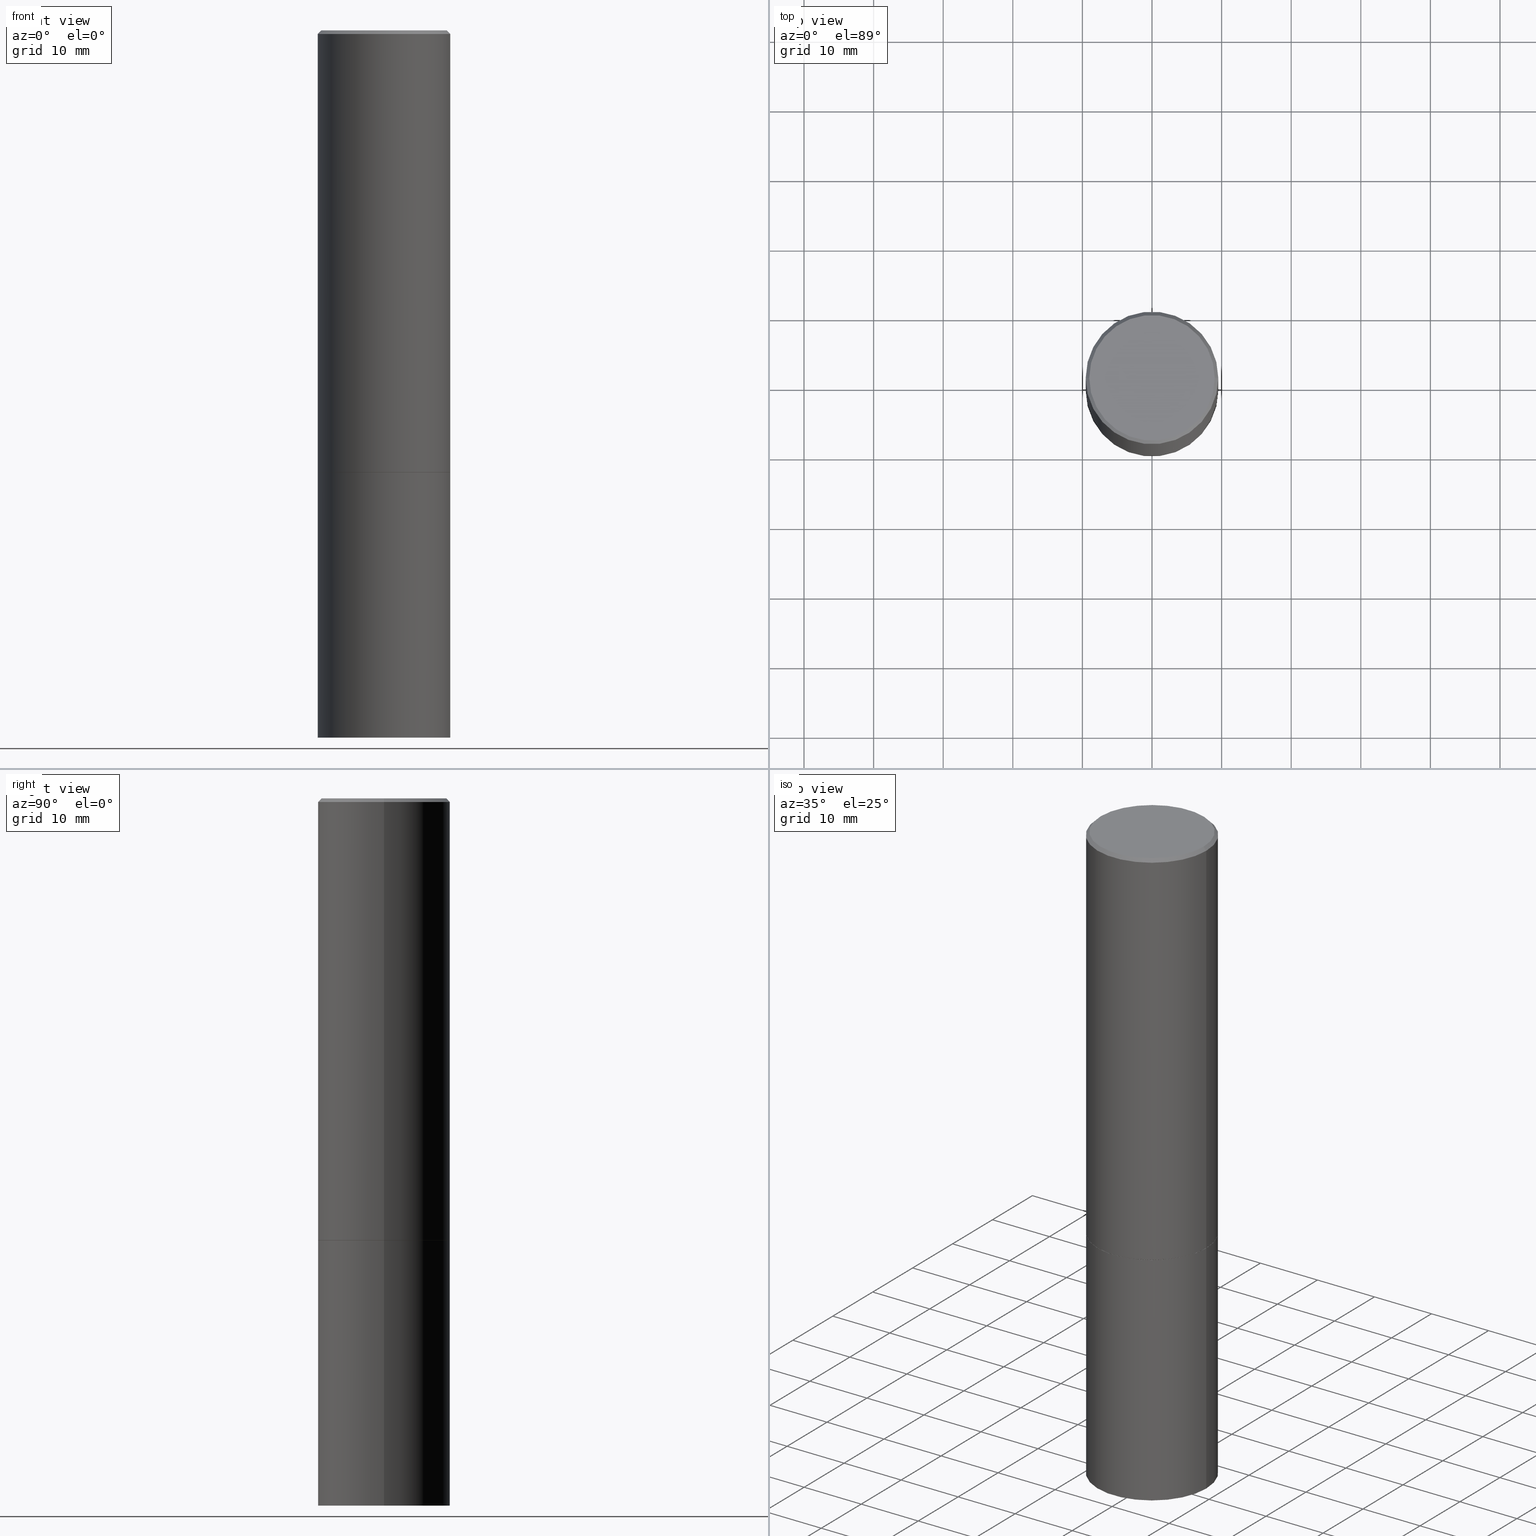
[diagram: canonical four-view strip — front | top / right | iso, engineering-drawing reading convention]
A machine part, canonical four-view strip (front | top / right | iso — engineering-drawing reading convention). The complete STEP part file that produces these views, byte-faithful:
ISO-10303-21;
HEADER;
FILE_DESCRIPTION (( 'STEP AP203' ),
    '1' );
FILE_NAME ('30182.STEP',
    '2023-03-21T20:25:00',
    ( '' ),
    ( '' ),
    'SwSTEP 2.0',
    'SolidWorks 2022',
    '' );
FILE_SCHEMA (( 'CONFIG_CONTROL_DESIGN' ));
ENDSEC;

DATA;
#1 = ORIENTED_EDGE ( 'NONE', *, *, #316, .T. ) ;
#2 = FACE_OUTER_BOUND ( 'NONE', #138, .T. ) ;
#3 = ORIENTED_EDGE ( 'NONE', *, *, #313, .T. ) ;
#4 = EDGE_CURVE ( 'NONE', #67, #338, #220, .T. ) ;
#5 = CC_DESIGN_DATE_AND_TIME_ASSIGNMENT ( #354, #20, ( #143 ) ) ;
#6 = EDGE_LOOP ( 'NONE', ( #136, #185, #334, #156 ) ) ;
#7 = DIRECTION ( 'NONE',  ( -2.445468806185136597E-29, 3.491481338843145583E-15, 1.000000000000000000 ) ) ;
#8 = ORIENTED_EDGE ( 'NONE', *, *, #97, .T. ) ;
#9 = LINE ( 'NONE', #318, #341 ) ;
#10 = AXIS2_PLACEMENT_3D ( 'NONE', #95, #215, #189 ) ;
#11 = LOCAL_TIME ( 16, 25, 0.000000000000000000, #266 ) ;
#12 = DIRECTION ( 'NONE',  ( -2.445468806185136597E-29, 3.491481338843145583E-15, 1.000000000000000000 ) ) ;
#13 = ORIENTED_EDGE ( 'NONE', *, *, #313, .F. ) ;
#14 = DATE_AND_TIME ( #351, #61 ) ;
#15 = DIRECTION ( 'NONE',  ( 1.000000000000000000, -6.982962677686265922E-15, 4.876176775795935793E-29 ) ) ;
#16 = CALENDAR_DATE ( 2023, 21, 3 ) ;
#17 = VECTOR ( 'NONE', #164, 39.37007874015748143 ) ;
#18 = CARTESIAN_POINT ( 'NONE',  ( 6.113672015462842613E-29, -8.728703347107864943E-15, -2.500000000000000000 ) ) ;
#19 = CC_DESIGN_PERSON_AND_ORGANIZATION_ASSIGNMENT ( #287, #144, ( #221 ) ) ;
#20 = DATE_TIME_ROLE ( 'creation_date' ) ;
#21 = DIRECTION ( 'NONE',  ( 1.000000000000000000, -6.982962677686268288E-15, 0.000000000000000000 ) ) ;
#22 = EDGE_CURVE ( 'NONE', #365, #192, #9, .T. ) ;
#23 = APPROVAL_DATE_TIME ( #323, #88 ) ;
#24 = CARTESIAN_POINT ( 'NONE',  ( -0.3750000000000001665, -1.134731435124022916E-14, -4.000000000000000000 ) ) ;
#25 = PERSON_AND_ORGANIZATION_ROLE ( 'creator' ) ;
#26 = DIRECTION ( 'NONE',  ( -2.445468806185136597E-29, 3.491481338843145583E-15, 1.000000000000000000 ) ) ;
#27 = AXIS2_PLACEMENT_3D ( 'NONE', #319, #100, #218 ) ;
#28 = AXIS2_PLACEMENT_3D ( 'NONE', #197, #26, #352 ) ;
#29 = DIRECTION ( 'NONE',  ( 0.7071067811868130271, -2.468850131085038979E-15, 0.7071067811862817853 ) ) ;
#30 = EDGE_CURVE ( 'NONE', #121, #365, #383, .T. ) ;
#31 = DIRECTION ( 'NONE',  ( -2.445468806185136597E-29, 3.491481338843145583E-15, 1.000000000000000000 ) ) ;
#32 = ORIENTED_EDGE ( 'NONE', *, *, #224, .T. ) ;
#33 = CC_DESIGN_PERSON_AND_ORGANIZATION_ASSIGNMENT ( #381, #297, ( #289 ) ) ;
#34 =( GEOMETRIC_REPRESENTATION_CONTEXT ( 3 ) GLOBAL_UNCERTAINTY_ASSIGNED_CONTEXT ( ( #202 ) ) GLOBAL_UNIT_ASSIGNED_CONTEXT ( ( #253, #102, #72 ) ) REPRESENTATION_CONTEXT ( 'NONE', 'WORKASPACE' ) );
#35 = PERSON ( 'UNSPECIFIED', 'UNSPECIFIED', 'UNSPECIFIED', ('UNSPECIFIED'), ('UNSPECIFIED'), ('UNSPECIFIED') ) ;
#36 = CONICAL_SURFACE ( 'NONE', #390, 0.3739999999999999991, 0.7853981633978239785 ) ;
#37 = VECTOR ( 'NONE', #377, 39.37007874015748143 ) ;
#38 = FACE_OUTER_BOUND ( 'NONE', #286, .T. ) ;
#39 = EDGE_LOOP ( 'NONE', ( #96, #32, #90, #240 ) ) ;
#40 = DIRECTION ( 'NONE',  ( 1.000000000000000000, -6.982962677686264344E-15, 0.000000000000000000 ) ) ;
#41 = ORIENTED_EDGE ( 'NONE', *, *, #186, .T. ) ;
#42 = CLOSED_SHELL ( 'NONE', ( #101, #244, #271, #78, #329, #159, #228, #173 ) ) ;
#43 = AXIS2_PLACEMENT_3D ( 'NONE', #108, #48, #56 ) ;
#44 = LINE ( 'NONE', #285, #17 ) ;
#45 = APPROVAL_ROLE ( '' ) ;
#46 = FACE_OUTER_BOUND ( 'NONE', #209, .T. ) ;
#47 = EDGE_CURVE ( 'NONE', #121, #120, #345, .T. ) ;
#48 = DIRECTION ( 'NONE',  ( 0.000000000000000000, 0.000000000000000000, 1.000000000000000000 ) ) ;
#49 = CARTESIAN_POINT ( 'NONE',  ( 2.478951750578621842E-15, 0.3549999999999996492, -1.237341619044265047E-15 ) ) ;
#50 = ORIENTED_EDGE ( 'NONE', *, *, #149, .F. ) ;
#51 = EDGE_CURVE ( 'NONE', #120, #192, #251, .T. ) ;
#52 = COORDINATED_UNIVERSAL_TIME_OFFSET ( 5, 0, .BEHIND. ) ;
#53 = AXIS2_PLACEMENT_3D ( 'NONE', #288, #7, #15 ) ;
#54 = CARTESIAN_POINT ( 'NONE',  ( -0.3750000000000000555, 2.664535259100376091E-15, -1.844600658845589598E-29 ) ) ;
#55 = VERTEX_POINT ( 'NONE', #70 ) ;
#56 = DIRECTION ( 'NONE',  ( 1.000000000000000000, 0.000000000000000000, 0.000000000000000000 ) ) ;
#57 = DIRECTION ( 'NONE',  ( 1.000000000000000000, -6.982962677686265922E-15, 4.876176775795935793E-29 ) ) ;
#58 = PERSON_AND_ORGANIZATION ( #35, #131 ) ;
#59 = DIRECTION ( 'NONE',  ( 1.000000000000000000, -6.982962677686265922E-15, 4.876176775795935793E-29 ) ) ;
#60 = DIRECTION ( 'NONE',  ( -2.445468806185136597E-29, 3.491481338843145583E-15, 1.000000000000000000 ) ) ;
#61 = LOCAL_TIME ( 16, 25, 0.000000000000000000, #166 ) ;
#62 = ORIENTED_EDGE ( 'NONE', *, *, #373, .T. ) ;
#63 = SECURITY_CLASSIFICATION ( '', '', #384 ) ;
#64 = ORIENTED_EDGE ( 'NONE', *, *, #373, .F. ) ;
#65 = EDGE_LOOP ( 'NONE', ( #135, #161 ) ) ;
#66 = DIRECTION ( 'NONE',  ( 0.9986295347545742773, -7.033825938271997912E-15, -0.05233595624293664594 ) ) ;
#67 = VERTEX_POINT ( 'NONE', #343 ) ;
#68 = CC_DESIGN_PERSON_AND_ORGANIZATION_ASSIGNMENT ( #168, #25, ( #143 ) ) ;
#69 = DIRECTION ( 'NONE',  ( -1.000000000000000000, 6.982962677686266711E-15, 0.000000000000000000 ) ) ;
#70 = CARTESIAN_POINT ( 'NONE',  ( 0.3750000000000001665, -1.653861210453690509E-14, -4.000000000000000000 ) ) ;
#71 = ADVANCED_FACE ( 'NONE', ( #38 ), #188, .F. ) ;
#72 =( NAMED_UNIT ( * ) SI_UNIT ( $, .STERADIAN. ) SOLID_ANGLE_UNIT ( ) );
#73 = AXIS2_PLACEMENT_3D ( 'NONE', #113, #178, #357 ) ;
#74 = CARTESIAN_POINT ( 'NONE',  ( 0.3749999999999998335, -2.618611004132348439E-15, 1.828566290923475082E-29 ) ) ;
#75 = CALENDAR_DATE ( 2023, 21, 3 ) ;
#76 = DIRECTION ( 'NONE',  ( -0.7071067811868130271, 7.493145998871311837E-15, 0.7071067811862817853 ) ) ;
#77 = CARTESIAN_POINT ( 'NONE',  ( 0.3739999999999999991, -1.134033138856252894E-14, -2.500000000000000000 ) ) ;
#78 = ADVANCED_FACE ( 'NONE', ( #217 ), #91, .T. ) ;
#79 = EDGE_LOOP ( 'NONE', ( #50, #62, #315 ) ) ;
#80 = COORDINATED_UNIVERSAL_TIME_OFFSET ( 5, 0, .BEHIND. ) ;
#81 = AXIS2_PLACEMENT_3D ( 'NONE', #94, #195, #98 ) ;
#82 = AXIS2_PLACEMENT_3D ( 'NONE', #151, #328, #115 ) ;
#83 = CARTESIAN_POINT ( 'NONE',  ( 0.3750000000000000555, -2.618611004132350016E-15, 1.828566290923476203E-29 ) ) ;
#84 = PLANE ( 'NONE',  #346 ) ;
#85 = CALENDAR_DATE ( 2023, 21, 3 ) ;
#86 = DIRECTION ( 'NONE',  ( 2.438088387897960049E-29, -3.491481338843145188E-15, -1.000000000000000000 ) ) ;
#87 = AXIS2_PLACEMENT_3D ( 'NONE', #298, #31, #89 ) ;
#88 = APPROVAL ( #105, 'UNSPECIFIED' ) ;
#89 = DIRECTION ( 'NONE',  ( 1.000000000000000000, -6.982962677686266711E-15, 0.000000000000000000 ) ) ;
#90 = ORIENTED_EDGE ( 'NONE', *, *, #211, .T. ) ;
#91 = CONICAL_SURFACE ( 'NONE', #303, 0.3749999999999996669, 0.7853981633974471688 ) ;
#92 = APPROVAL_PERSON_ORGANIZATION ( #226, #340, #45 ) ;
#93 = EDGE_CURVE ( 'NONE', #248, #192, #44, .T. ) ;
#94 = CARTESIAN_POINT ( 'NONE',  ( 1.060121140848089932E-27, -1.513572027916513369E-13, -43.35042582292633995 ) ) ;
#95 = CARTESIAN_POINT ( 'NONE',  ( 6.111226546656659252E-29, -8.725211865769023513E-15, -2.499000000000000998 ) ) ;
#96 = ORIENTED_EDGE ( 'NONE', *, *, #312, .F. ) ;
#97 = EDGE_CURVE ( 'NONE', #192, #120, #147, .T. ) ;
#98 = DIRECTION ( 'NONE',  ( -1.000000000000000000, 6.982962677686265922E-15, 0.000000000000000000 ) ) ;
#99 =( LENGTH_UNIT ( ) NAMED_UNIT ( * ) SI_UNIT ( $, .METRE. ) );
#100 = DIRECTION ( 'NONE',  ( -2.445468806185136597E-29, 3.491481338843145583E-15, 1.000000000000000000 ) ) ;
#101 = ADVANCED_FACE ( 'NONE', ( #46 ), #36, .T. ) ;
#102 =( NAMED_UNIT ( * ) PLANE_ANGLE_UNIT ( ) SI_UNIT ( $, .RADIAN. ) );
#103 = CARTESIAN_POINT ( 'NONE',  ( 6.113672015462842613E-29, -8.728703347107864943E-15, -2.500000000000000000 ) ) ;
#104 = CONICAL_SURFACE ( 'NONE', #158, 751.2258538476709191, 1.518436449235073926 ) ;
#105 = APPROVAL_STATUS ( 'not_yet_approved' ) ;
#106 = AXIS2_PLACEMENT_3D ( 'NONE', #306, #274, #270 ) ;
#107 = DIRECTION ( 'NONE',  ( -2.445468806185136877E-29, 3.491481338843145188E-15, 1.000000000000000000 ) ) ;
#108 = CARTESIAN_POINT ( 'NONE',  ( 0.000000000000000000, 0.000000000000000000, 0.000000000000000000 ) ) ;
#109 = CYLINDRICAL_SURFACE ( 'NONE', #82, 0.3749999999999998335 ) ;
#110 = DIRECTION ( 'NONE',  ( -1.000000000000000000, 6.982962677686265922E-15, 0.000000000000000000 ) ) ;
#111 = PERSON_AND_ORGANIZATION ( #35, #131 ) ;
#112 = CIRCLE ( 'NONE', #125, 0.3739999999999999991 ) ;
#113 = CARTESIAN_POINT ( 'NONE',  ( 9.781875224740546387E-29, -1.396592535537258233E-14, -4.000000000000000000 ) ) ;
#114 = PERSON_AND_ORGANIZATION_ROLE ( 'classification_officer' ) ;
#115 = DIRECTION ( 'NONE',  ( 1.000000000000000000, -6.982962677686265922E-15, 4.876176775795935793E-29 ) ) ;
#116 = PRODUCT_RELATED_PRODUCT_CATEGORY ( 'detail', '', ( #289 ) ) ;
#117 = CARTESIAN_POINT ( 'NONE',  ( -1.043851414335219820E-46, 1.490343170380447200E-32, 4.268512490100411279E-18 ) ) ;
#118 = CIRCLE ( 'NONE', #73, 0.3750000000000000555 ) ;
#119 = ADVANCED_FACE ( 'NONE', ( #128 ), #277, .T. ) ;
#120 = VERTEX_POINT ( 'NONE', #260 ) ;
#121 = VERTEX_POINT ( 'NONE', #214 ) ;
#122 = DIRECTION ( 'NONE',  ( -2.445468806185136597E-29, 3.491481338843145583E-15, 1.000000000000000000 ) ) ;
#123 = ORIENTED_EDGE ( 'NONE', *, *, #273, .F. ) ;
#124 = CARTESIAN_POINT ( 'NONE',  ( -1.043851414335219820E-46, 1.490343170380447200E-32, 4.268512490100411279E-18 ) ) ;
#125 = AXIS2_PLACEMENT_3D ( 'NONE', #18, #199, #21 ) ;
#126 = LOCAL_TIME ( 16, 25, 0.000000000000000000, #52 ) ;
#127 = ORIENTED_EDGE ( 'NONE', *, *, #273, .T. ) ;
#128 = FACE_OUTER_BOUND ( 'NONE', #322, .T. ) ;
#129 = ORIENTED_EDGE ( 'NONE', *, *, #22, .F. ) ;
#130 = ORIENTED_EDGE ( 'NONE', *, *, #186, .F. ) ;
#131 = ORGANIZATION ( 'UNSPECIFIED', 'UNSPECIFIED', '' ) ;
#132 = LENGTH_MEASURE_WITH_UNIT ( LENGTH_MEASURE( 0.02539999999999999897 ), #99 );
#133 = CARTESIAN_POINT ( 'NONE',  ( 4.890937612370298557E-31, -6.982962677686327354E-17, -0.02000000000000010103 ) ) ;
#134 = ORIENTED_EDGE ( 'NONE', *, *, #47, .F. ) ;
#135 = ORIENTED_EDGE ( 'NONE', *, *, #281, .F. ) ;
#136 = ORIENTED_EDGE ( 'NONE', *, *, #368, .F. ) ;
#137 = SHAPE_DEFINITION_REPRESENTATION ( #229, #154 ) ;
#138 = EDGE_LOOP ( 'NONE', ( #129, #276, #363, #278 ) ) ;
#139 = CC_DESIGN_APPROVAL ( #88, ( #143 ) ) ;
#140 = APPROVAL_DATE_TIME ( #14, #340 ) ;
#141 = DIRECTION ( 'NONE',  ( 2.445468806185136597E-29, -3.491481338843145583E-15, -1.000000000000000000 ) ) ;
#142 = CARTESIAN_POINT ( 'NONE',  ( -0.3749999999999996669, 2.548781377355484352E-15, -0.02000000000000010103 ) ) ;
#143 = PRODUCT_DEFINITION ( 'UNKNOWN', '', #221, #160 ) ;
#144 = PERSON_AND_ORGANIZATION_ROLE ( 'creator' ) ;
#145 = DIRECTION ( 'NONE',  ( 2.445468806185136597E-29, -3.491481338843145583E-15, -1.000000000000000000 ) ) ;
#146 = CALENDAR_DATE ( 2023, 21, 3 ) ;
#147 = CIRCLE ( 'NONE', #27, 0.3749999999999996669 ) ;
#148 = CIRCLE ( 'NONE', #309, 0.3549999999999996492 ) ;
#149 = EDGE_CURVE ( 'NONE', #213, #55, #339, .T. ) ;
#150 = DIRECTION ( 'NONE',  ( 1.000000000000000000, -6.982962677686268288E-15, 0.000000000000000000 ) ) ;
#151 = CARTESIAN_POINT ( 'NONE',  ( 0.000000000000000000, 0.000000000000000000, 0.000000000000000000 ) ) ;
#152 = EDGE_CURVE ( 'NONE', #365, #121, #360, .T. ) ;
#153 = ORIENTED_EDGE ( 'NONE', *, *, #301, .F. ) ;
#154 = ADVANCED_BREP_SHAPE_REPRESENTATION ( '30182', ( #256, #246, #43 ), #34 ) ;
#155 = CYLINDRICAL_SURFACE ( 'NONE', #106, 0.3749999999999998335 ) ;
#156 = ORIENTED_EDGE ( 'NONE', *, *, #93, .F. ) ;
#157 = ORIENTED_EDGE ( 'NONE', *, *, #302, .F. ) ;
#158 = AXIS2_PLACEMENT_3D ( 'NONE', #234, #141, #110 ) ;
#159 = ADVANCED_FACE ( 'NONE', ( #314 ), #231, .T. ) ;
#160 = DESIGN_CONTEXT ( 'detailed design', #269, 'design' ) ;
#161 = ORIENTED_EDGE ( 'NONE', *, *, #224, .F. ) ;
#162 = ORIENTED_EDGE ( 'NONE', *, *, #4, .F. ) ;
#163 = EDGE_LOOP ( 'NONE', ( #225, #389 ) ) ;
#164 = DIRECTION ( 'NONE',  ( -0.7071067811865466846, 2.468850131082247989E-15, -0.7071067811865483499 ) ) ;
#165 = ORIENTED_EDGE ( 'NONE', *, *, #149, .T. ) ;
#166 = COORDINATED_UNIVERSAL_TIME_OFFSET ( 5, 0, .BEHIND. ) ;
#167 = VERTEX_POINT ( 'NONE', #24 ) ;
#168 = PERSON_AND_ORGANIZATION ( #35, #131 ) ;
#169 = DIRECTION ( 'NONE',  ( -2.438088387897960049E-29, 3.491481338843145188E-15, 1.000000000000000000 ) ) ;
#170 = VECTOR ( 'NONE', #191, 39.37007874015748143 ) ;
#171 = CIRCLE ( 'NONE', #87, 0.3750000000000000555 ) ;
#172 = FACE_OUTER_BOUND ( 'NONE', #370, .T. ) ;
#173 = ADVANCED_FACE ( 'NONE', ( #324 ), #327, .F. ) ;
#174 = APPROVAL_ROLE ( '' ) ;
#175 = DIRECTION ( 'NONE',  ( -1.000000000000000000, 6.982962677686265922E-15, -4.876176775795935793E-29 ) ) ;
#176 = LINE ( 'NONE', #83, #37 ) ;
#177 = LOCAL_TIME ( 16, 25, 0.000000000000000000, #80 ) ;
#178 = DIRECTION ( 'NONE',  ( -2.445468806185136597E-29, 3.491481338843145583E-15, 1.000000000000000000 ) ) ;
#179 = CARTESIAN_POINT ( 'NONE',  ( 2.618611004132411153E-15, 0.3749999999999912847, -2.500000000000001332 ) ) ;
#180 = ORIENTED_EDGE ( 'NONE', *, *, #4, .T. ) ;
#181 = CARTESIAN_POINT ( 'NONE',  ( -2.062409618954544780E-19, -1.389730756160623425E-14, -3.980347082768862066 ) ) ;
#182 = AXIS2_PLACEMENT_3D ( 'NONE', #347, #219, #40 ) ;
#183 = VECTOR ( 'NONE', #382, 39.37007874015748143 ) ;
#184 = ORIENTED_EDGE ( 'NONE', *, *, #281, .T. ) ;
#185 = ORIENTED_EDGE ( 'NONE', *, *, #301, .T. ) ;
#186 = EDGE_CURVE ( 'NONE', #167, #338, #264, .T. ) ;
#187 = DIRECTION ( 'NONE',  ( -1.000000000000000000, 6.982962677686265922E-15, -4.876176775795935793E-29 ) ) ;
#188 = CONICAL_SURFACE ( 'NONE', #81, 751.2258538476709191, 1.518436449235073926 ) ;
#189 = DIRECTION ( 'NONE',  ( 1.000000000000000000, -6.982962677686264344E-15, 0.000000000000000000 ) ) ;
#190 = ORIENTED_EDGE ( 'NONE', *, *, #30, .F. ) ;
#191 = DIRECTION ( 'NONE',  ( -2.445468806185136877E-29, 3.491481338843145188E-15, 1.000000000000000000 ) ) ;
#192 = VERTEX_POINT ( 'NONE', #142 ) ;
#193 = AXIS2_PLACEMENT_3D ( 'NONE', #103, #257, #371 ) ;
#194 = CIRCLE ( 'NONE', #200, 0.3739999999999999991 ) ;
#195 = DIRECTION ( 'NONE',  ( 2.445468806185136597E-29, -3.491481338843145583E-15, -1.000000000000000000 ) ) ;
#196 = APPROVAL_STATUS ( 'not_yet_approved' ) ;
#197 = CARTESIAN_POINT ( 'NONE',  ( 6.113672015462842613E-29, -8.728703347107864943E-15, -2.500000000000000000 ) ) ;
#198 = APPROVAL ( #196, 'UNSPECIFIED' ) ;
#199 = DIRECTION ( 'NONE',  ( -2.445468806185136597E-29, 3.491481338843145583E-15, 1.000000000000000000 ) ) ;
#200 = AXIS2_PLACEMENT_3D ( 'NONE', #296, #60, #227 ) ;
#201 = DATE_AND_TIME ( #146, #177 ) ;
#202 = UNCERTAINTY_MEASURE_WITH_UNIT (LENGTH_MEASURE( 1.000000000000000082E-05 ), #253, 'distance_accuracy_value', 'NONE');
#203 = CARTESIAN_POINT ( 'NONE',  ( 9.733958645995281744E-29, -1.389710132064424131E-14, -3.980347082768862066 ) ) ;
#204 = APPLICATION_PROTOCOL_DEFINITION ( 'international standard', 'config_control_design', 1994, #255 ) ;
#205 = FACE_OUTER_BOUND ( 'NONE', #6, .T. ) ;
#206 = DATE_TIME_ROLE ( 'classification_date' ) ;
#207 = FACE_OUTER_BOUND ( 'NONE', #279, .T. ) ;
#208 = PLANE ( 'NONE',  #332 ) ;
#209 = EDGE_LOOP ( 'NONE', ( #184, #258, #190, #294 ) ) ;
#210 = ADVANCED_FACE ( 'NONE', ( #172 ), #359, .T. ) ;
#211 = EDGE_CURVE ( 'NONE', #272, #121, #223, .T. ) ;
#212 = CARTESIAN_POINT ( 'NONE',  ( -0.3739999999999999991, -6.065975061016868641E-15, -2.500000000000000000 ) ) ;
#213 = VERTEX_POINT ( 'NONE', #203 ) ;
#214 = CARTESIAN_POINT ( 'NONE',  ( 0.3750000000000000555, -1.134382286990137353E-14, -2.499000000000000998 ) ) ;
#215 = DIRECTION ( 'NONE',  ( -2.445468806185136597E-29, 3.491481338843145583E-15, 1.000000000000000000 ) ) ;
#216 = CC_DESIGN_SECURITY_CLASSIFICATION ( #63, ( #221 ) ) ;
#217 = FACE_OUTER_BOUND ( 'NONE', #243, .T. ) ;
#218 = DIRECTION ( 'NONE',  ( 1.000000000000000000, -6.982962677686266711E-15, 0.000000000000000000 ) ) ;
#219 = DIRECTION ( 'NONE',  ( -2.445468806185136597E-29, 3.491481338843145583E-15, 1.000000000000000000 ) ) ;
#220 = CIRCLE ( 'NONE', #193, 0.3750000000000000555 ) ;
#221 = PRODUCT_DEFINITION_FORMATION_WITH_SPECIFIED_SOURCE ( 'ANY', '', #289, .NOT_KNOWN. ) ;
#222 = PERSON_AND_ORGANIZATION ( #35, #131 ) ;
#223 = LINE ( 'NONE', #77, #275 ) ;
#224 = EDGE_CURVE ( 'NONE', #362, #272, #112, .T. ) ;
#225 = ORIENTED_EDGE ( 'NONE', *, *, #353, .T. ) ;
#226 = PERSON_AND_ORGANIZATION ( #35, #131 ) ;
#227 = DIRECTION ( 'NONE',  ( 1.000000000000000000, -6.982962677686268288E-15, 0.000000000000000000 ) ) ;
#228 = ADVANCED_FACE ( 'NONE', ( #267 ), #84, .F. ) ;
#229 = PRODUCT_DEFINITION_SHAPE ( 'NONE', 'NONE',  #143 ) ;
#230 = CARTESIAN_POINT ( 'NONE',  ( 4.890937612370298557E-31, -6.982962677686327354E-17, -0.02000000000000010103 ) ) ;
#231 = CONICAL_SURFACE ( 'NONE', #282, 0.3739999999999999991, 0.7853981633978239785 ) ;
#232 = LOCAL_TIME ( 16, 25, 0.000000000000000000, #235 ) ;
#233 = PERSON_AND_ORGANIZATION_ROLE ( 'design_supplier' ) ;
#234 = CARTESIAN_POINT ( 'NONE',  ( 1.060121140848089932E-27, -1.513572027916513369E-13, -43.35042582292633995 ) ) ;
#235 = COORDINATED_UNIVERSAL_TIME_OFFSET ( 5, 0, .BEHIND. ) ;
#236 = DIRECTION ( 'NONE',  ( -1.000000000000000000, 6.982962677686266711E-15, 0.000000000000000000 ) ) ;
#237 = AXIS2_PLACEMENT_3D ( 'NONE', #49, #86, #175 ) ;
#238 = CIRCLE ( 'NONE', #28, 0.3750000000000000555 ) ;
#239 = CARTESIAN_POINT ( 'NONE',  ( -0.3749999999999999445, -1.732985487172566723E-15, -2.499000000000000998 ) ) ;
#240 = ORIENTED_EDGE ( 'NONE', *, *, #152, .F. ) ;
#241 = ADVANCED_FACE ( 'NONE', ( #265 ), #104, .F. ) ;
#242 = DIRECTION ( 'NONE',  ( -2.445468806185136597E-29, 3.491481338843145583E-15, 1.000000000000000000 ) ) ;
#243 = EDGE_LOOP ( 'NONE', ( #153, #280, #250, #8 ) ) ;
#244 = ADVANCED_FACE ( 'NONE', ( #207 ), #109, .T. ) ;
#245 = DIRECTION ( 'NONE',  ( 1.000000000000000000, -6.982962677686265922E-15, 4.876231632511992667E-29 ) ) ;
#246 = MANIFOLD_SOLID_BREP ( 'Body-Move/Copy2[2]', #42 ) ;
#247 = CIRCLE ( 'NONE', #299, 0.3549999999999996492 ) ;
#248 = VERTEX_POINT ( 'NONE', #379 ) ;
#249 = CARTESIAN_POINT ( 'NONE',  ( 2.062409620901307990E-19, -1.389730756160623425E-14, -3.980347082768862066 ) ) ;
#250 = ORIENTED_EDGE ( 'NONE', *, *, #93, .T. ) ;
#251 = CIRCLE ( 'NONE', #308, 0.3749999999999996669 ) ;
#252 = CARTESIAN_POINT ( 'NONE',  ( 4.890937612370298557E-31, -6.982962677686327354E-17, -0.02000000000000010103 ) ) ;
#253 =( CONVERSION_BASED_UNIT ( 'INCH', #132 ) LENGTH_UNIT ( ) NAMED_UNIT ( #335 ) );
#254 = DIRECTION ( 'NONE',  ( 1.000000000000000000, -6.982962677686268288E-15, 0.000000000000000000 ) ) ;
#255 = APPLICATION_CONTEXT ( 'configuration controlled 3d designs of mechanical parts and assemblies' ) ;
#256 = MANIFOLD_SOLID_BREP ( 'Body-Move/Copy2[1]', #262 ) ;
#257 = DIRECTION ( 'NONE',  ( -2.445468806185136597E-29, 3.491481338843145583E-15, 1.000000000000000000 ) ) ;
#258 = ORIENTED_EDGE ( 'NONE', *, *, #312, .T. ) ;
#259 = APPROVAL_DATE_TIME ( #201, #198 ) ;
#260 = CARTESIAN_POINT ( 'NONE',  ( 0.3749999999999996669, -2.642516375941185662E-15, -0.02000000000000010103 ) ) ;
#261 = CC_DESIGN_PERSON_AND_ORGANIZATION_ASSIGNMENT ( #291, #114, ( #63 ) ) ;
#262 = CLOSED_SHELL ( 'NONE', ( #119, #71, #241, #210, #387 ) ) ;
#263 = VECTOR ( 'NONE', #76, 39.37007874015748854 ) ;
#264 = LINE ( 'NONE', #54, #330 ) ;
#265 = FACE_OUTER_BOUND ( 'NONE', #79, .T. ) ;
#266 = COORDINATED_UNIVERSAL_TIME_OFFSET ( 5, 0, .BEHIND. ) ;
#267 = FACE_OUTER_BOUND ( 'NONE', #65, .T. ) ;
#268 = CARTESIAN_POINT ( 'NONE',  ( 6.113672015462842613E-29, -8.728703347107864943E-15, -2.500000000000000000 ) ) ;
#269 = APPLICATION_CONTEXT ( 'configuration controlled 3d designs of mechanical parts and assemblies' ) ;
#270 = DIRECTION ( 'NONE',  ( 1.000000000000000000, -6.982962677686265922E-15, 4.876176775795935793E-29 ) ) ;
#271 = ADVANCED_FACE ( 'NONE', ( #205 ), #342, .T. ) ;
#272 = VERTEX_POINT ( 'NONE', #355 ) ;
#273 = EDGE_CURVE ( 'NONE', #55, #67, #176, .T. ) ;
#274 = DIRECTION ( 'NONE',  ( -2.445468806185136597E-29, 3.491481338843145583E-15, 1.000000000000000000 ) ) ;
#275 = VECTOR ( 'NONE', #29, 39.37007874015748854 ) ;
#276 = ORIENTED_EDGE ( 'NONE', *, *, #152, .T. ) ;
#277 = CYLINDRICAL_SURFACE ( 'NONE', #53, 0.3750000000000000555 ) ;
#278 = ORIENTED_EDGE ( 'NONE', *, *, #97, .F. ) ;
#279 = EDGE_LOOP ( 'NONE', ( #364, #375, #348, #134 ) ) ;
#280 = ORIENTED_EDGE ( 'NONE', *, *, #353, .F. ) ;
#281 = EDGE_CURVE ( 'NONE', #272, #362, #194, .T. ) ;
#282 = AXIS2_PLACEMENT_3D ( 'NONE', #321, #374, #150 ) ;
#283 = CARTESIAN_POINT ( 'NONE',  ( 6.113672015462842613E-29, -8.728703347107864943E-15, -2.500000000000000000 ) ) ;
#284 = CC_DESIGN_APPROVAL ( #340, ( #63 ) ) ;
#285 = CARTESIAN_POINT ( 'NONE',  ( -0.3749999999999996669, 2.548781377355484352E-15, -0.02000000000000010103 ) ) ;
#286 = EDGE_LOOP ( 'NONE', ( #64, #165, #157 ) ) ;
#287 = PERSON_AND_ORGANIZATION ( #35, #131 ) ;
#288 = CARTESIAN_POINT ( 'NONE',  ( 0.000000000000000000, 0.000000000000000000, 0.000000000000000000 ) ) ;
#289 = PRODUCT ( '30182', '30182', '', ( #376 ) ) ;
#290 = EDGE_LOOP ( 'NONE', ( #180, #3 ) ) ;
#291 = PERSON_AND_ORGANIZATION ( #35, #131 ) ;
#292 = DIRECTION ( 'NONE',  ( -2.445468806185136597E-29, 3.491481338843145583E-15, 1.000000000000000000 ) ) ;
#293 = APPROVAL_PERSON_ORGANIZATION ( #222, #198, #174 ) ;
#294 = ORIENTED_EDGE ( 'NONE', *, *, #211, .F. ) ;
#295 = CARTESIAN_POINT ( 'NONE',  ( 0.000000000000000000, 0.000000000000000000, 0.000000000000000000 ) ) ;
#296 = CARTESIAN_POINT ( 'NONE',  ( 6.113672015462842613E-29, -8.728703347107864943E-15, -2.500000000000000000 ) ) ;
#297 = PERSON_AND_ORGANIZATION_ROLE ( 'design_owner' ) ;
#298 = CARTESIAN_POINT ( 'NONE',  ( 9.781875224740546387E-29, -1.396592535537258233E-14, -4.000000000000000000 ) ) ;
#299 = AXIS2_PLACEMENT_3D ( 'NONE', #124, #122, #245 ) ;
#300 = LINE ( 'NONE', #350, #263 ) ;
#301 = EDGE_CURVE ( 'NONE', #380, #120, #385, .T. ) ;
#302 = EDGE_CURVE ( 'NONE', #167, #55, #118, .T. ) ;
#303 = AXIS2_PLACEMENT_3D ( 'NONE', #133, #344, #69 ) ;
#304 = AXIS2_PLACEMENT_3D ( 'NONE', #230, #145, #236 ) ;
#305 = DIRECTION ( 'NONE',  ( 2.438088387897960049E-29, -3.491481338843145188E-15, -1.000000000000000000 ) ) ;
#306 = CARTESIAN_POINT ( 'NONE',  ( 0.000000000000000000, 0.000000000000000000, 0.000000000000000000 ) ) ;
#307 = LINE ( 'NONE', #181, #325 ) ;
#308 = AXIS2_PLACEMENT_3D ( 'NONE', #252, #311, #367 ) ;
#309 = AXIS2_PLACEMENT_3D ( 'NONE', #117, #242, #337 ) ;
#310 = CC_DESIGN_APPROVAL ( #198, ( #221 ) ) ;
#311 = DIRECTION ( 'NONE',  ( -2.445468806185136597E-29, 3.491481338843145583E-15, 1.000000000000000000 ) ) ;
#312 = EDGE_CURVE ( 'NONE', #362, #365, #300, .T. ) ;
#313 = EDGE_CURVE ( 'NONE', #338, #67, #238, .T. ) ;
#314 = FACE_OUTER_BOUND ( 'NONE', #39, .T. ) ;
#315 = ORIENTED_EDGE ( 'NONE', *, *, #316, .F. ) ;
#316 = EDGE_CURVE ( 'NONE', #55, #167, #171, .T. ) ;
#317 = VECTOR ( 'NONE', #66, 39.37007874015748143 ) ;
#318 = CARTESIAN_POINT ( 'NONE',  ( -0.3749999999999998335, 2.664535259100374514E-15, -1.844600658845588757E-29 ) ) ;
#319 = CARTESIAN_POINT ( 'NONE',  ( 4.890937612370298557E-31, -6.982962677686327354E-17, -0.02000000000000010103 ) ) ;
#320 = APPROVAL_ROLE ( '' ) ;
#321 = CARTESIAN_POINT ( 'NONE',  ( 6.113672015462842613E-29, -8.728703347107864943E-15, -2.500000000000000000 ) ) ;
#322 = EDGE_LOOP ( 'NONE', ( #1, #41, #162, #123 ) ) ;
#323 = DATE_AND_TIME ( #75, #11 ) ;
#324 = FACE_OUTER_BOUND ( 'NONE', #163, .T. ) ;
#325 = VECTOR ( 'NONE', #386, 39.37007874015748143 ) ;
#326 = CARTESIAN_POINT ( 'NONE',  ( 0.3749999999999996669, -2.642516375941185662E-15, -0.02000000000000010103 ) ) ;
#327 = PLANE ( 'NONE',  #237 ) ;
#328 = DIRECTION ( 'NONE',  ( -2.445468806185136597E-29, 3.491481338843145583E-15, 1.000000000000000000 ) ) ;
#329 = ADVANCED_FACE ( 'NONE', ( #2 ), #155, .T. ) ;
#330 = VECTOR ( 'NONE', #107, 39.37007874015748143 ) ;
#331 = CC_DESIGN_PERSON_AND_ORGANIZATION_ASSIGNMENT ( #111, #233, ( #221 ) ) ;
#332 = AXIS2_PLACEMENT_3D ( 'NONE', #179, #305, #187 ) ;
#333 = CARTESIAN_POINT ( 'NONE',  ( 0.3549999999999996492, -2.538996582575038287E-15, 4.268512490117958041E-18 ) ) ;
#334 = ORIENTED_EDGE ( 'NONE', *, *, #51, .T. ) ;
#335 = DIMENSIONAL_EXPONENTS ( 1.000000000000000000, 0.000000000000000000, 0.000000000000000000, 0.000000000000000000, 0.000000000000000000, 0.000000000000000000, 0.000000000000000000 ) ;
#336 = AXIS2_PLACEMENT_3D ( 'NONE', #295, #292, #59 ) ;
#337 = DIRECTION ( 'NONE',  ( 1.000000000000000000, -6.982962677686265922E-15, 4.876231632511992667E-29 ) ) ;
#338 = VERTEX_POINT ( 'NONE', #388 ) ;
#339 = LINE ( 'NONE', #249, #317 ) ;
#340 = APPROVAL ( #349, 'UNSPECIFIED' ) ;
#341 = VECTOR ( 'NONE', #369, 39.37007874015748143 ) ;
#342 = CONICAL_SURFACE ( 'NONE', #304, 0.3749999999999996669, 0.7853981633974471688 ) ;
#343 = CARTESIAN_POINT ( 'NONE',  ( 0.3750000000000000555, -1.134731435124021338E-14, -2.500000000000000000 ) ) ;
#344 = DIRECTION ( 'NONE',  ( 2.445468806185136597E-29, -3.491481338843145583E-15, -1.000000000000000000 ) ) ;
#345 = LINE ( 'NONE', #74, #170 ) ;
#346 = AXIS2_PLACEMENT_3D ( 'NONE', #268, #169, #57 ) ;
#347 = CARTESIAN_POINT ( 'NONE',  ( 6.111226546656659252E-29, -8.725211865769023513E-15, -2.499000000000000998 ) ) ;
#348 = ORIENTED_EDGE ( 'NONE', *, *, #51, .F. ) ;
#349 = APPROVAL_STATUS ( 'not_yet_approved' ) ;
#350 = CARTESIAN_POINT ( 'NONE',  ( -0.3739999999999999991, -6.071273515365089465E-15, -2.500000000000000000 ) ) ;
#351 = CALENDAR_DATE ( 2023, 21, 3 ) ;
#352 = DIRECTION ( 'NONE',  ( 1.000000000000000000, -6.982962677686264344E-15, 0.000000000000000000 ) ) ;
#353 = EDGE_CURVE ( 'NONE', #248, #380, #148, .T. ) ;
#354 = DATE_AND_TIME ( #85, #126 ) ;
#355 = CARTESIAN_POINT ( 'NONE',  ( 0.3739999999999999991, -1.134033138856252894E-14, -2.500000000000000000 ) ) ;
#356 = APPROVAL_PERSON_ORGANIZATION ( #58, #88, #320 ) ;
#357 = DIRECTION ( 'NONE',  ( 1.000000000000000000, -6.982962677686266711E-15, 0.000000000000000000 ) ) ;
#358 = DATE_AND_TIME ( #16, #232 ) ;
#359 = CYLINDRICAL_SURFACE ( 'NONE', #336, 0.3750000000000000555 ) ;
#360 = CIRCLE ( 'NONE', #10, 0.3750000000000000555 ) ;
#361 = FACE_OUTER_BOUND ( 'NONE', #290, .T. ) ;
#362 = VERTEX_POINT ( 'NONE', #212 ) ;
#363 = ORIENTED_EDGE ( 'NONE', *, *, #47, .T. ) ;
#364 = ORIENTED_EDGE ( 'NONE', *, *, #30, .T. ) ;
#365 = VERTEX_POINT ( 'NONE', #239 ) ;
#366 = ORIENTED_EDGE ( 'NONE', *, *, #302, .T. ) ;
#367 = DIRECTION ( 'NONE',  ( 1.000000000000000000, -6.982962677686266711E-15, 0.000000000000000000 ) ) ;
#368 = EDGE_CURVE ( 'NONE', #380, #248, #247, .T. ) ;
#369 = DIRECTION ( 'NONE',  ( -2.445468806185136877E-29, 3.491481338843145188E-15, 1.000000000000000000 ) ) ;
#370 = EDGE_LOOP ( 'NONE', ( #130, #366, #127, #13 ) ) ;
#371 = DIRECTION ( 'NONE',  ( 1.000000000000000000, -6.982962677686264344E-15, 0.000000000000000000 ) ) ;
#372 = APPLICATION_PROTOCOL_DEFINITION ( 'international standard', 'config_control_design', 1994, #269 ) ;
#373 = EDGE_CURVE ( 'NONE', #213, #167, #307, .T. ) ;
#374 = DIRECTION ( 'NONE',  ( -2.445468806185136597E-29, 3.491481338843145583E-15, 1.000000000000000000 ) ) ;
#375 = ORIENTED_EDGE ( 'NONE', *, *, #22, .T. ) ;
#376 = MECHANICAL_CONTEXT ( 'NONE', #255, 'mechanical' ) ;
#377 = DIRECTION ( 'NONE',  ( -2.445468806185136877E-29, 3.491481338843145188E-15, 1.000000000000000000 ) ) ;
#378 = CC_DESIGN_DATE_AND_TIME_ASSIGNMENT ( #358, #206, ( #63 ) ) ;
#379 = CARTESIAN_POINT ( 'NONE',  ( -0.3549999999999996492, 2.513866563967053097E-15, 4.268512490082953109E-18 ) ) ;
#380 = VERTEX_POINT ( 'NONE', #333 ) ;
#381 = PERSON_AND_ORGANIZATION ( #35, #131 ) ;
#382 = DIRECTION ( 'NONE',  ( 0.7071067811865466846, -7.319954787623252890E-15, -0.7071067811865483499 ) ) ;
#383 = CIRCLE ( 'NONE', #182, 0.3750000000000000555 ) ;
#384 = SECURITY_CLASSIFICATION_LEVEL ( 'unclassified' ) ;
#385 = LINE ( 'NONE', #326, #183 ) ;
#386 = DIRECTION ( 'NONE',  ( -0.9986295347545742773, 6.790662755453667677E-15, -0.05233595624293664594 ) ) ;
#387 = ADVANCED_FACE ( 'NONE', ( #361 ), #208, .F. ) ;
#388 = CARTESIAN_POINT ( 'NONE',  ( -0.3750000000000000555, -8.682779092139847151E-15, -2.500000000000000000 ) ) ;
#389 = ORIENTED_EDGE ( 'NONE', *, *, #368, .T. ) ;
#390 = AXIS2_PLACEMENT_3D ( 'NONE', #283, #12, #254 ) ;
ENDSEC;
END-ISO-10303-21;
